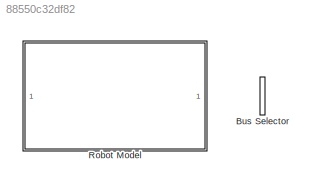
MODEL slx_88550c32df82
KIND model
CONFIG AbsTol = 1e-3
CONFIG EnableMultiTasking = on
CONFIG FixedStep = auto
CONFIG MaxStep = auto
CONFIG MinStep = auto
CONFIG RelTol = 1e-3
CONFIG SampleTimeConstraint = Unconstrained
CONFIG SolverName = VariableStepAuto
CONFIG StartTime = 0.0
CONFIG StopTime = 2
BLOCK [BusSelector] Bus Selector
  OutputSignals = torso
  Ports = [1, 1]
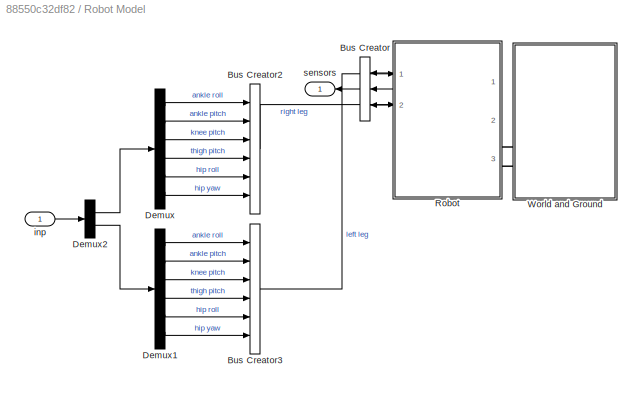
BLOCK [SubSystem] Robot Model
  NameLocation = top
  PortSchema = {"entries":[{"content":{"sides":[{"content":{"connectorIds":["Out1"]},"type":"ConnectorPlacement.EquallySpacedRectSide","uuid":"a5de47a2-bb43-4664-a503-b437f0e3823c"},{"content":{"connectorIds":["In1"],"side":"RIGHT"},"type":"ConnectorPlacement.EquallySpacedRectSide","uuid":"5192edd8-53c0-441f-92fa-dcb378f1ff29"},{"content":{"connectorIds":[],"side":"TOP"},"type":"ConnectorPlacement.EquallySpacedR...<+240ch>
  Ports = [1, 1]
  RequestExecContextInheritance = off
BLOCK [BusCreator] Robot Model/Bus Creator
  DisplayOption = bar
  InheritFromInputs = on
  Inputs = 3
  NameLocation = top
  Ports = [3, 1]
BLOCK [BusCreator] Robot Model/Bus Creator2
  DisplayOption = bar
  InheritFromInputs = on
  Inputs = 6
  Ports = [6, 1]
BLOCK [BusCreator] Robot Model/Bus Creator3
  DisplayOption = bar
  InheritFromInputs = on
  Inputs = 6
  Ports = [6, 1]
BLOCK [Demux] Robot Model/Demux
  Outputs = 6
  Ports = [1, 6]
BLOCK [Demux] Robot Model/Demux1
  Outputs = 6
  Ports = [1, 6]
BLOCK [Demux] Robot Model/Demux2
  Outputs = 2
  Ports = [1, 2]
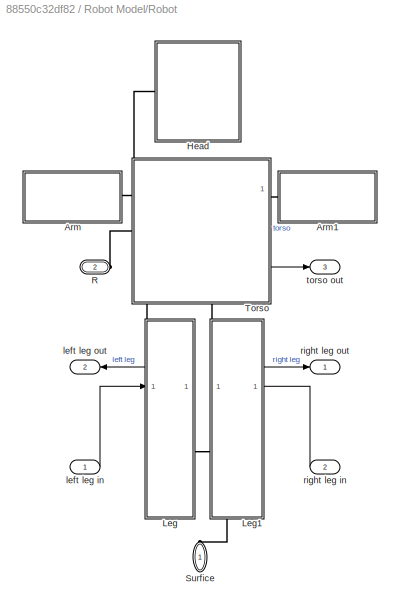
BLOCK [SubSystem] Robot Model/Robot
  NameLocation = top
  PortSchema = {"entries":[{"content":{"sides":[{"content":{"connectorIds":["LConn1","LConn2"]},"type":"ConnectorPlacement.EquallySpacedRectSide","uuid":"10fe7efb-b495-481a-b287-e2cd7380fbe9"},{"content":{"connectorIds":["In1","In2","Out1","Out2","Out3"],"side":"RIGHT"},"type":"ConnectorPlacement.EquallySpacedRectSide","uuid":"cbe7c615-a160-4a6e-93ac-5adb227f1a5e"},{"content":{"connectorIds":[],"side":"TOP"},"ty...<+278ch>
  Ports = [2, 3, 0, 0, 0, 2]
  RequestExecContextInheritance = off
BLOCK [SubSystem] Robot Model/Robot/Arm
  Ports = [0, 0, 0, 0, 0, 0, 1]
  ReferencedSubsystem = Arm
  RequestExecContextInheritance = off
BLOCK [SubSystem] Robot Model/Robot/Arm1
  Ports = [0, 0, 0, 0, 0, 0, 1]
  ReferencedSubsystem = Arm
  RequestExecContextInheritance = off
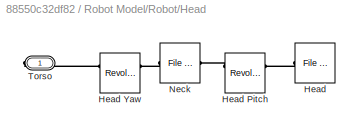
BLOCK [SubSystem] Robot Model/Robot/Head
  NameLocation = right
  PortSchema = {"entries":[{"content":{"sides":[{"content":{"connectorIds":[]},"type":"ConnectorPlacement.EquallySpacedRectSide","uuid":"96bb7e1e-8cd2-409c-ae55-fc83563c4583"},{"content":{"connectorIds":[],"side":"RIGHT"},"type":"ConnectorPlacement.EquallySpacedRectSide","uuid":"58a74174-e012-41a0-92a8-a06ddb8dea99"},{"content":{"connectorIds":[],"side":"TOP"},"type":"ConnectorPlacement.EquallySpacedRectSide","u...<+381ch>
  Ports = [0, 0, 0, 0, 0, 0, 1]
  RequestExecContextInheritance = off
BLOCK [Reference] Robot Model/Robot/Head/Head  REF=sm_lib/Body Elements/File Solid
  Ports = [0, 0, 0, 0, 0, 1]
  SourceBlock = sm_lib/Body Elements/File Solid
  SourceProductBaseCode = MS
  SourceType = File Solid
BLOCK [Reference] Robot Model/Robot/Head/Head Pitch  REF=sm_lib/Joints/Revolute Joint
  NameLocation = top
  Ports = [0, 0, 0, 0, 0, 2, 2]
  SourceBlock = sm_lib/Joints/Revolute Joint
  SourceProductBaseCode = MS
  SourceType = Revolute Joint
BLOCK [Reference] Robot Model/Robot/Head/Head Yaw  REF=sm_lib/Joints/Revolute Joint
  NameLocation = top
  Ports = [0, 0, 0, 0, 0, 2, 2]
  SourceBlock = sm_lib/Joints/Revolute Joint
  SourceProductBaseCode = MS
  SourceType = Revolute Joint
BLOCK [Reference] Robot Model/Robot/Head/Neck  REF=sm_lib/Body Elements/File Solid
  NameLocation = top
  Ports = [0, 0, 0, 0, 0, 1, 1]
  SourceBlock = sm_lib/Body Elements/File Solid
  SourceProductBaseCode = MS
  SourceType = File Solid
BLOCK [PMIOPort] Robot Model/Robot/Head/Torso
  Side = Right
BLOCK [SubSystem] Robot Model/Robot/Leg
  PortSchema = {"entries":[{"content":{"sides":[{"content":{"connectorIds":["Out1","In1"]},"type":"ConnectorPlacement.EquallySpacedRectSide","uuid":"68ecfd26-4235-42f3-a932-26046d5e4311"},{"content":{"connectorIds":[],"side":"RIGHT"},"type":"ConnectorPlacement.EquallySpacedRectSide","uuid":"7cf57672-f52b-4712-9995-509875dd54a0"},{"content":{"connectorIds":["LConn1"],"side":"TOP"},"type":"ConnectorPlacement.Equal...<+401ch>
  Ports = [1, 1, 0, 0, 0, 1, 1]
  ReferencedSubsystem = Leg
  RequestExecContextInheritance = off
BLOCK [SubSystem] Robot Model/Robot/Leg1
  PortSchema = {"entries":[{"content":{"sides":[{"content":{"connectorIds":[]},"type":"ConnectorPlacement.EquallySpacedRectSide","uuid":"68ecfd26-4235-42f3-a932-26046d5e4311"},{"content":{"connectorIds":["Out1","In1"],"side":"RIGHT"},"type":"ConnectorPlacement.EquallySpacedRectSide","uuid":"7cf57672-f52b-4712-9995-509875dd54a0"},{"content":{"connectorIds":["LConn1"],"side":"TOP"},"type":"ConnectorPlacement.Equal...<+401ch>
  Ports = [1, 1, 0, 0, 0, 1, 1]
  ReferencedSubsystem = Leg
  RequestExecContextInheritance = off
BLOCK [PMIOPort] Robot Model/Robot/R
  Port = 2
  Side = Left
BLOCK [PMIOPort] Robot Model/Robot/Surfice
  NameLocation = right
  Side = Left
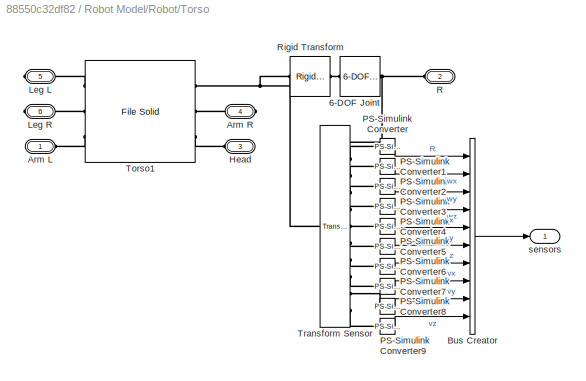
BLOCK [SubSystem] Robot Model/Robot/Torso
  PortSchema = {"entries":[{"content":{"sides":[{"content":{"connectorIds":["LConn1","LConn2"]},"type":"ConnectorPlacement.EquallySpacedRectSide","uuid":"c331dec5-9eb2-41c9-9792-b669887d430e"},{"content":{"connectorIds":["RConn1","Out1"],"side":"RIGHT"},"type":"ConnectorPlacement.EquallySpacedRectSide","uuid":"dd35f61f-2d58-4ce2-a2b2-8de063996fc8"},{"content":{"connectorIds":["LConn3"],"side":"TOP"},"type":"Conn...<+430ch>
  Ports = [0, 1, 0, 0, 0, 3, 3]
  RequestExecContextInheritance = off
BLOCK [Reference] Robot Model/Robot/Torso/6-DOF Joint  REF=sm_lib/Joints/6-DOF Joint
  NameLocation = top
  Ports = [0, 0, 0, 0, 0, 1, 1]
  SourceBlock = sm_lib/Joints/6-DOF Joint
  SourceProductBaseCode = MS
  SourceType = 6-DOF Joint
BLOCK [PMIOPort] Robot Model/Robot/Torso/Arm L
  Side = Left
BLOCK [PMIOPort] Robot Model/Robot/Torso/Arm R
  Port = 4
  Side = Right
BLOCK [BusCreator] Robot Model/Robot/Torso/Bus Creator
  DisplayOption = bar
  InheritFromInputs = on
  Inputs = 10
  Ports = [10, 1]
BLOCK [PMIOPort] Robot Model/Robot/Torso/Head
  Port = 3
  Side = Left
BLOCK [PMIOPort] Robot Model/Robot/Torso/Leg L
  Port = 5
  Side = Right
BLOCK [PMIOPort] Robot Model/Robot/Torso/Leg R
  Port = 6
  Side = Right
BLOCK [Reference] Robot Model/Robot/Torso/PS-Simulink Converter  REF=nesl_utility/PS-Simulink
Converter
  NameLocation = right
  Ports = [0, 1, 0, 0, 0, 1]
  SourceBlock = nesl_utility/PS-Simulink\nConverter
  SourceProductBaseCode = PW,SS
  SourceType = PS-Simulink\nConverter
BLOCK [Reference] Robot Model/Robot/Torso/PS-Simulink Converter1  REF=nesl_utility/PS-Simulink
Converter
  Ports = [0, 1, 0, 0, 0, 1]
  SourceBlock = nesl_utility/PS-Simulink\nConverter
  SourceProductBaseCode = PW,SS
  SourceType = PS-Simulink\nConverter
BLOCK [Reference] Robot Model/Robot/Torso/PS-Simulink Converter2  REF=nesl_utility/PS-Simulink
Converter
  Ports = [0, 1, 0, 0, 0, 1]
  SourceBlock = nesl_utility/PS-Simulink\nConverter
  SourceProductBaseCode = PW,SS
  SourceType = PS-Simulink\nConverter
BLOCK [Reference] Robot Model/Robot/Torso/PS-Simulink Converter3  REF=nesl_utility/PS-Simulink
Converter
  NameLocation = right
  Ports = [0, 1, 0, 0, 0, 1]
  SourceBlock = nesl_utility/PS-Simulink\nConverter
  SourceProductBaseCode = PW,SS
  SourceType = PS-Simulink\nConverter
BLOCK [Reference] Robot Model/Robot/Torso/PS-Simulink Converter4  REF=nesl_utility/PS-Simulink
Converter
  Ports = [0, 1, 0, 0, 0, 1]
  SourceBlock = nesl_utility/PS-Simulink\nConverter
  SourceProductBaseCode = PW,SS
  SourceType = PS-Simulink\nConverter
BLOCK [Reference] Robot Model/Robot/Torso/PS-Simulink Converter5  REF=nesl_utility/PS-Simulink
Converter
  Ports = [0, 1, 0, 0, 0, 1]
  SourceBlock = nesl_utility/PS-Simulink\nConverter
  SourceProductBaseCode = PW,SS
  SourceType = PS-Simulink\nConverter
BLOCK [Reference] Robot Model/Robot/Torso/PS-Simulink Converter6  REF=nesl_utility/PS-Simulink
Converter
  NameLocation = right
  Ports = [0, 1, 0, 0, 0, 1]
  SourceBlock = nesl_utility/PS-Simulink\nConverter
  SourceProductBaseCode = PW,SS
  SourceType = PS-Simulink\nConverter
BLOCK [Reference] Robot Model/Robot/Torso/PS-Simulink Converter7  REF=nesl_utility/PS-Simulink
Converter
  Ports = [0, 1, 0, 0, 0, 1]
  SourceBlock = nesl_utility/PS-Simulink\nConverter
  SourceProductBaseCode = PW,SS
  SourceType = PS-Simulink\nConverter
BLOCK [Reference] Robot Model/Robot/Torso/PS-Simulink Converter8  REF=nesl_utility/PS-Simulink
Converter
  Ports = [0, 1, 0, 0, 0, 1]
  SourceBlock = nesl_utility/PS-Simulink\nConverter
  SourceProductBaseCode = PW,SS
  SourceType = PS-Simulink\nConverter
BLOCK [Reference] Robot Model/Robot/Torso/PS-Simulink Converter9  REF=nesl_utility/PS-Simulink
Converter
  Ports = [0, 1, 0, 0, 0, 1]
  SourceBlock = nesl_utility/PS-Simulink\nConverter
  SourceProductBaseCode = PW,SS
  SourceType = PS-Simulink\nConverter
BLOCK [PMIOPort] Robot Model/Robot/Torso/R
  NameLocation = top
  Port = 2
  Side = Left
BLOCK [Reference] Robot Model/Robot/Torso/Rigid Transform  REF=sm_lib/Frames and
Transforms/Rigid
Transform
  NameLocation = top
  Ports = [0, 0, 0, 0, 0, 1, 1]
  SourceBlock = sm_lib/Frames and\nTransforms/Rigid\nTransform
  SourceProductBaseCode = MS
  SourceType = Rigid\nTransform
BLOCK [Reference] Robot Model/Robot/Torso/Torso1  REF=sm_lib/Body Elements/File Solid
  Ports = [0, 0, 0, 0, 0, 3, 3]
  SourceBlock = sm_lib/Body Elements/File Solid
  SourceProductBaseCode = MS
  SourceType = File Solid
BLOCK [Reference] Robot Model/Robot/Torso/Transform Sensor  REF=sm_lib/Frames and
Transforms/Transform
Sensor
  Ports = [0, 0, 0, 0, 0, 1, 11]
  SourceBlock = sm_lib/Frames and\nTransforms/Transform\nSensor
  SourceProductBaseCode = MS
  SourceType = Transform\nSensor
BLOCK [Outport] Robot Model/Robot/Torso/sensors
BLOCK [Inport] Robot Model/Robot/left leg in
BLOCK [Outport] Robot Model/Robot/left leg out
  Port = 2
BLOCK [Inport] Robot Model/Robot/right leg in
  Port = 2
BLOCK [Outport] Robot Model/Robot/right leg out
BLOCK [Outport] Robot Model/Robot/torso out
  Port = 3
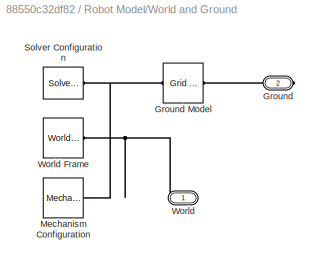
BLOCK [SubSystem] Robot Model/World and Ground
  NameLocation = top
  Ports = [0, 0, 0, 0, 0, 0, 2]
  RequestExecContextInheritance = off
BLOCK [PMIOPort] Robot Model/World and Ground/Ground
  Port = 2
  Side = Right
BLOCK [Reference] Robot Model/World and Ground/Ground Model  REF=sm_lib/Curves and Surfaces/Grid Surface
  Ports = [0, 0, 0, 0, 0, 1, 1]
  SourceBlock = sm_lib/Curves and Surfaces/Grid Surface
  SourceProductBaseCode = MS
  SourceType = Grid Surface
BLOCK [Reference] Robot Model/World and Ground/Mechanism Configuration  REF=sm_lib/Utilities/Mechanism
Configuration
  Ports = [0, 0, 0, 0, 0, 0, 1]
  SourceBlock = sm_lib/Utilities/Mechanism\nConfiguration
  SourceProductBaseCode = MS
  SourceType = Mechanism\nConfiguration
BLOCK [Reference] Robot Model/World and Ground/Solver Configuration  REF=nesl_utility/Solver
Configuration
  Ports = [0, 0, 0, 0, 0, 0, 1]
  SourceBlock = nesl_utility/Solver\nConfiguration
  SourceProductBaseCode = PW,SS
  SourceType = Solver\nConfiguration
BLOCK [PMIOPort] Robot Model/World and Ground/World
  Side = Right
BLOCK [Reference] Robot Model/World and Ground/World Frame  REF=sm_lib/Frames and
Transforms/World Frame
  Ports = [0, 0, 0, 0, 0, 0, 1]
  SourceBlock = sm_lib/Frames and\nTransforms/World Frame
  SourceProductBaseCode = MS
  SourceType = World Frame
BLOCK [Inport] Robot Model/inp
BLOCK [Outport] Robot Model/sensors
LINE Robot Model/Bus Creator2:1 -> Robot Model/Robot:2
LINE Robot Model/Bus Creator3:1 -> Robot Model/Robot:1
LINE Robot Model/Bus Creator:1 -> Robot Model/sensors:1
LINE Robot Model/Demux1:1 -> Robot Model/Bus Creator3:1
LINE Robot Model/Demux1:2 -> Robot Model/Bus Creator3:2
LINE Robot Model/Demux1:3 -> Robot Model/Bus Creator3:3
LINE Robot Model/Demux1:4 -> Robot Model/Bus Creator3:4
LINE Robot Model/Demux1:5 -> Robot Model/Bus Creator3:5
LINE Robot Model/Demux1:6 -> Robot Model/Bus Creator3:6
LINE Robot Model/Demux2:1 -> Robot Model/Demux:1
LINE Robot Model/Demux2:2 -> Robot Model/Demux1:1
LINE Robot Model/Demux:1 -> Robot Model/Bus Creator2:1
LINE Robot Model/Demux:2 -> Robot Model/Bus Creator2:2
LINE Robot Model/Demux:3 -> Robot Model/Bus Creator2:3
LINE Robot Model/Demux:4 -> Robot Model/Bus Creator2:4
LINE Robot Model/Demux:5 -> Robot Model/Bus Creator2:5
LINE Robot Model/Demux:6 -> Robot Model/Bus Creator2:6
LINE Robot Model/Robot/Leg1:1 -> Robot Model/Robot/right leg out:1
LINE Robot Model/Robot/Leg:1 -> Robot Model/Robot/left leg out:1
LINE Robot Model/Robot/Torso/Bus Creator:1 -> Robot Model/Robot/Torso/sensors:1
LINE Robot Model/Robot/Torso/PS-Simulink Converter1:1 -> Robot Model/Robot/Torso/Bus Creator:2
LINE Robot Model/Robot/Torso/PS-Simulink Converter2:1 -> Robot Model/Robot/Torso/Bus Creator:3
LINE Robot Model/Robot/Torso/PS-Simulink Converter3:1 -> Robot Model/Robot/Torso/Bus Creator:4
LINE Robot Model/Robot/Torso/PS-Simulink Converter4:1 -> Robot Model/Robot/Torso/Bus Creator:5
LINE Robot Model/Robot/Torso/PS-Simulink Converter5:1 -> Robot Model/Robot/Torso/Bus Creator:6
LINE Robot Model/Robot/Torso/PS-Simulink Converter6:1 -> Robot Model/Robot/Torso/Bus Creator:7
LINE Robot Model/Robot/Torso/PS-Simulink Converter7:1 -> Robot Model/Robot/Torso/Bus Creator:8
LINE Robot Model/Robot/Torso/PS-Simulink Converter8:1 -> Robot Model/Robot/Torso/Bus Creator:9
LINE Robot Model/Robot/Torso/PS-Simulink Converter9:1 -> Robot Model/Robot/Torso/Bus Creator:10
LINE Robot Model/Robot/Torso/PS-Simulink Converter:1 -> Robot Model/Robot/Torso/Bus Creator:1
LINE Robot Model/Robot/Torso:1 -> Robot Model/Robot/torso out:1
LINE Robot Model/Robot/left leg in:1 -> Robot Model/Robot/Leg:1
LINE Robot Model/Robot/right leg in:1 -> Robot Model/Robot/Leg1:1
LINE Robot Model/Robot:1 -> Robot Model/Bus Creator:3
LINE Robot Model/Robot:2 -> Robot Model/Bus Creator:2
LINE Robot Model/Robot:3 -> Robot Model/Bus Creator:1
LINE Robot Model/inp:1 -> Robot Model/Demux2:1
PLINE Robot Model/Robot/Arm1:RConn1 -- Robot Model/Robot/Torso:RConn1
PLINE Robot Model/Robot/Arm:RConn1 -- Robot Model/Robot/Torso:LConn1
PLINE Robot Model/Robot/Head/Head Pitch:LConn1 -- Robot Model/Robot/Head/Head:LConn1
PLINE Robot Model/Robot/Head/Head Pitch:RConn1 -- Robot Model/Robot/Head/Neck:LConn1
PLINE Robot Model/Robot/Head/Head Yaw:LConn1 -- Robot Model/Robot/Head/Neck:RConn1
PLINE Robot Model/Robot/Head/Head Yaw:RConn1 -- Robot Model/Robot/Head/Torso:RConn1
PLINE Robot Model/Robot/Head:RConn1 -- Robot Model/Robot/Torso:LConn3
PLINE Robot Model/Robot/Leg1:LConn1 -- Robot Model/Robot/Torso:RConn3
PNET net1: Robot Model/Robot/Leg1:RConn1 -- Robot Model/Robot/Leg:RConn1 -- Robot Model/Robot/Surfice:RConn1
PLINE Robot Model/Robot/Leg:LConn1 -- Robot Model/Robot/Torso:RConn2
PLINE Robot Model/Robot/R:RConn1 -- Robot Model/Robot/Torso:LConn2
PNET net2: Robot Model/Robot/Torso/6-DOF Joint:LConn1 -- Robot Model/Robot/Torso/R:RConn1 -- Robot Model/Robot/Torso/Transform Sensor:RConn1
PLINE Robot Model/Robot/Torso/6-DOF Joint:RConn1 -- Robot Model/Robot/Torso/Rigid Transform:LConn1
PLINE Robot Model/Robot/Torso/Arm L:RConn1 -- Robot Model/Robot/Torso/Torso1:LConn3
PLINE Robot Model/Robot/Torso/Arm R:RConn1 -- Robot Model/Robot/Torso/Torso1:RConn2
PLINE Robot Model/Robot/Torso/Head:RConn1 -- Robot Model/Robot/Torso/Torso1:RConn3
PLINE Robot Model/Robot/Torso/Leg L:RConn1 -- Robot Model/Robot/Torso/Torso1:LConn1
PLINE Robot Model/Robot/Torso/Leg R:RConn1 -- Robot Model/Robot/Torso/Torso1:LConn2
PLINE Robot Model/Robot/Torso/PS-Simulink Converter1:LConn1 -- Robot Model/Robot/Torso/Transform Sensor:RConn3
PLINE Robot Model/Robot/Torso/PS-Simulink Converter2:LConn1 -- Robot Model/Robot/Torso/Transform Sensor:RConn4
PLINE Robot Model/Robot/Torso/PS-Simulink Converter3:LConn1 -- Robot Model/Robot/Torso/Transform Sensor:RConn5
PLINE Robot Model/Robot/Torso/PS-Simulink Converter4:LConn1 -- Robot Model/Robot/Torso/Transform Sensor:RConn6
PLINE Robot Model/Robot/Torso/PS-Simulink Converter5:LConn1 -- Robot Model/Robot/Torso/Transform Sensor:RConn7
PLINE Robot Model/Robot/Torso/PS-Simulink Converter6:LConn1 -- Robot Model/Robot/Torso/Transform Sensor:RConn8
PLINE Robot Model/Robot/Torso/PS-Simulink Converter7:LConn1 -- Robot Model/Robot/Torso/Transform Sensor:RConn9
PLINE Robot Model/Robot/Torso/PS-Simulink Converter8:LConn1 -- Robot Model/Robot/Torso/Transform Sensor:RConn10
PLINE Robot Model/Robot/Torso/PS-Simulink Converter9:LConn1 -- Robot Model/Robot/Torso/Transform Sensor:RConn11
PLINE Robot Model/Robot/Torso/PS-Simulink Converter:LConn1 -- Robot Model/Robot/Torso/Transform Sensor:RConn2
PNET net3: Robot Model/Robot/Torso/Rigid Transform:RConn1 -- Robot Model/Robot/Torso/Torso1:RConn1 -- Robot Model/Robot/Torso/Transform Sensor:LConn1
PLINE Robot Model/Robot:LConn1 -- Robot Model/World and Ground:RConn2
PLINE Robot Model/Robot:LConn2 -- Robot Model/World and Ground:RConn1
PNET net4: Robot Model/World and Ground/Ground Model:LConn1 -- Robot Model/World and Ground/Mechanism Configuration:RConn1 -- Robot Model/World and Ground/Solver Configuration:RConn1 -- Robot Model/World and Ground/World Frame:RConn1 -- Robot Model/World and Ground/World:RConn1
PLINE Robot Model/World and Ground/Ground Model:RConn1 -- Robot Model/World and Ground/Ground:RConn1
note: PNET lines group multi-terminal physical nets as a canonical sorted terminal list (undirected conserving connections); 2-terminal nets keep the pairwise PLINE form
